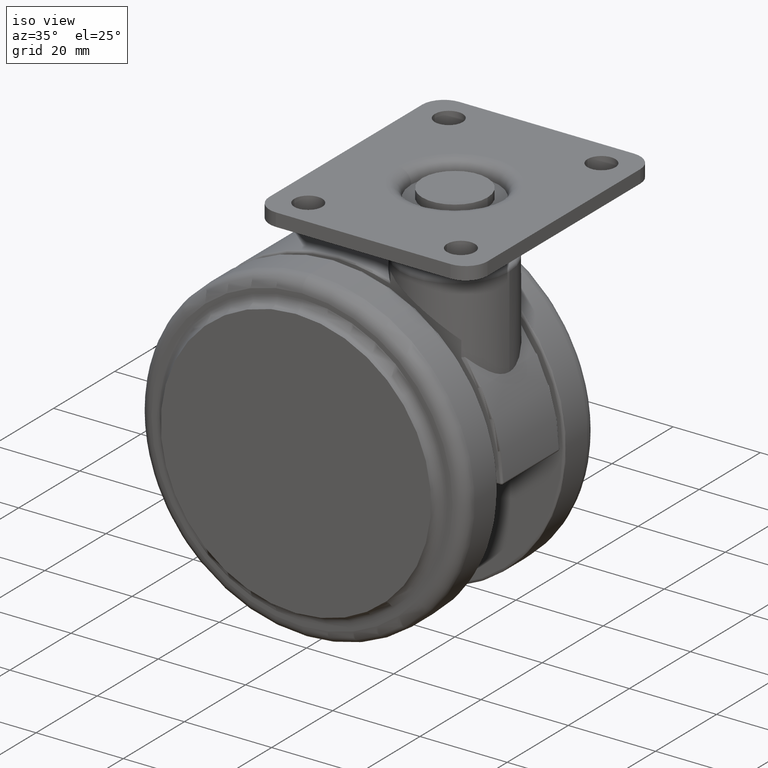
[diagram: clean part render]
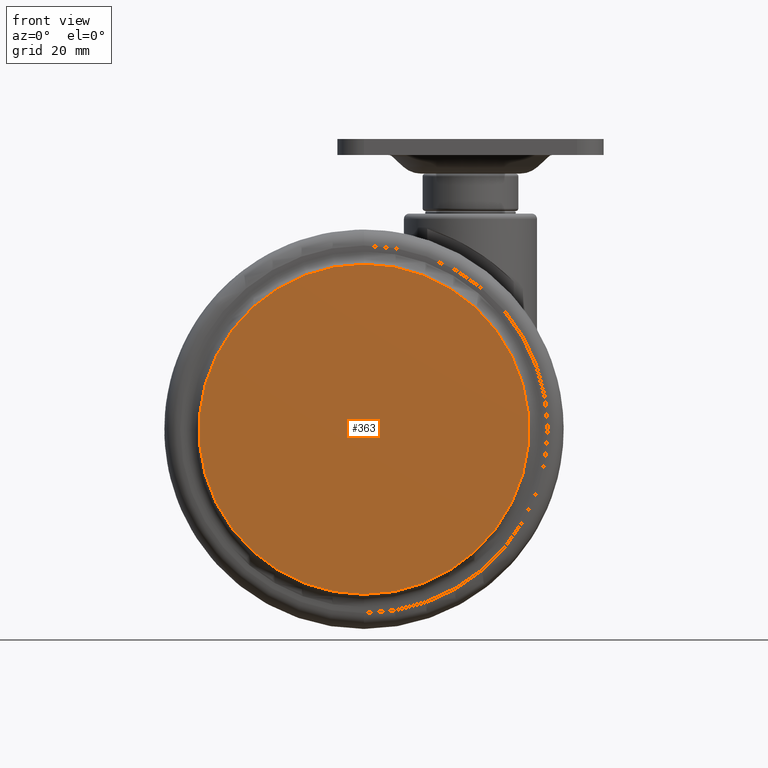
[diagram: tour spotlight — one face highlighted and labeled with its STEP entity id]
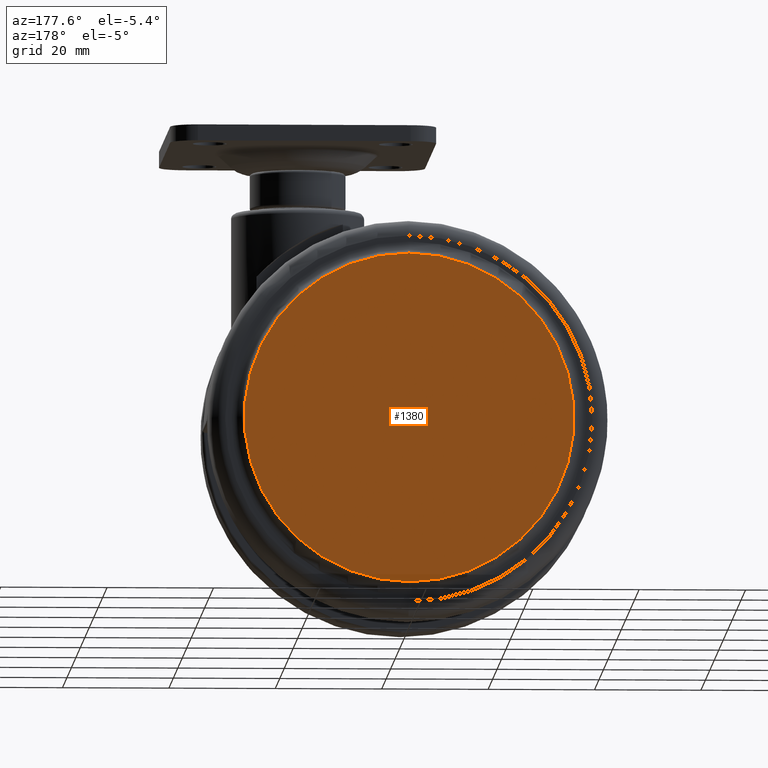
[diagram: tour spotlight — one face highlighted and labeled with its STEP entity id]
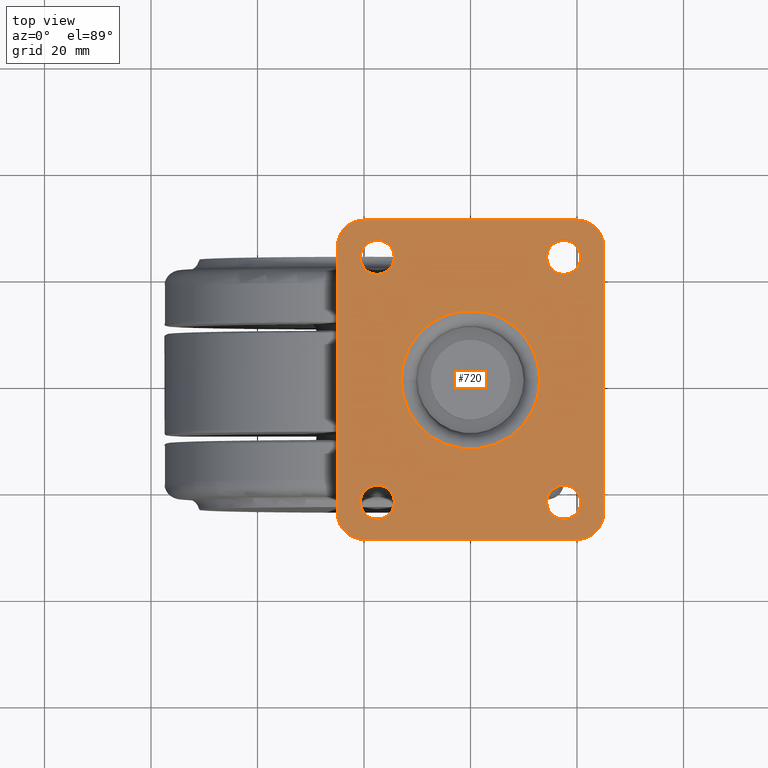
[diagram: tour spotlight — one face highlighted and labeled with its STEP entity id]
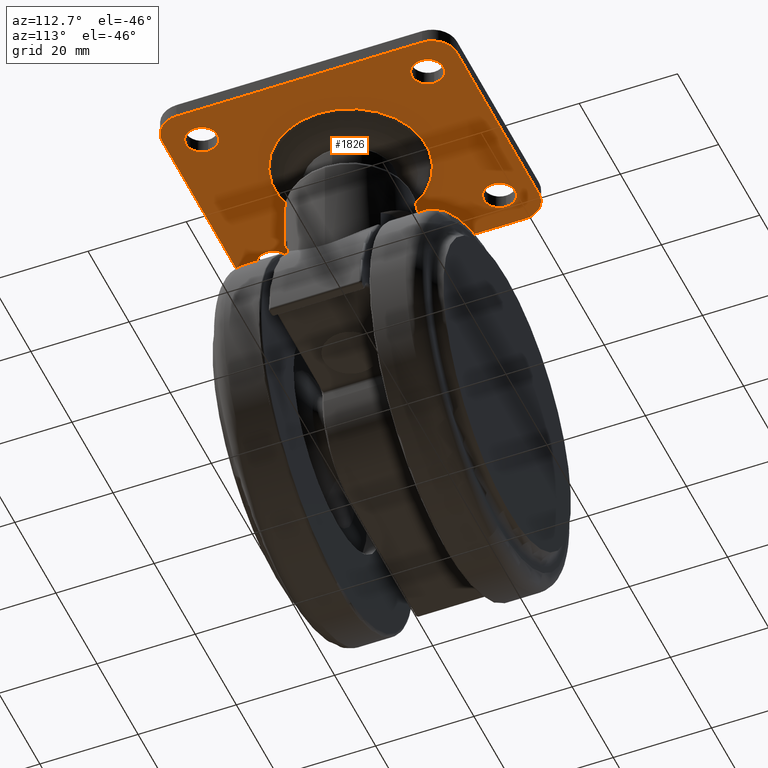
[diagram: tour spotlight — one face highlighted and labeled with its STEP entity id]
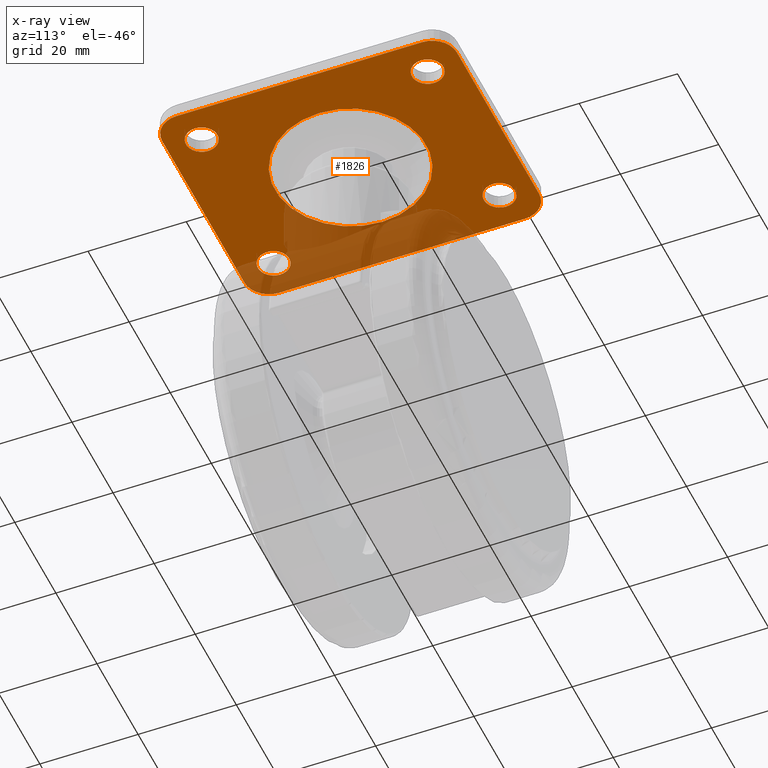
[diagram: x-ray of the same camera — body ghosted, this tour face saturated]
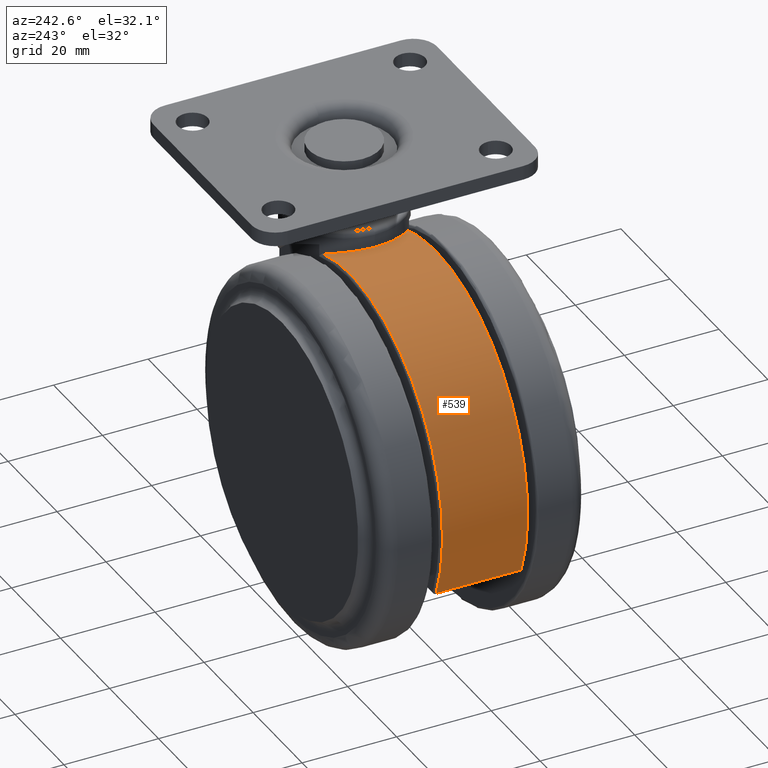
[diagram: tour spotlight — one face highlighted and labeled with its STEP entity id]
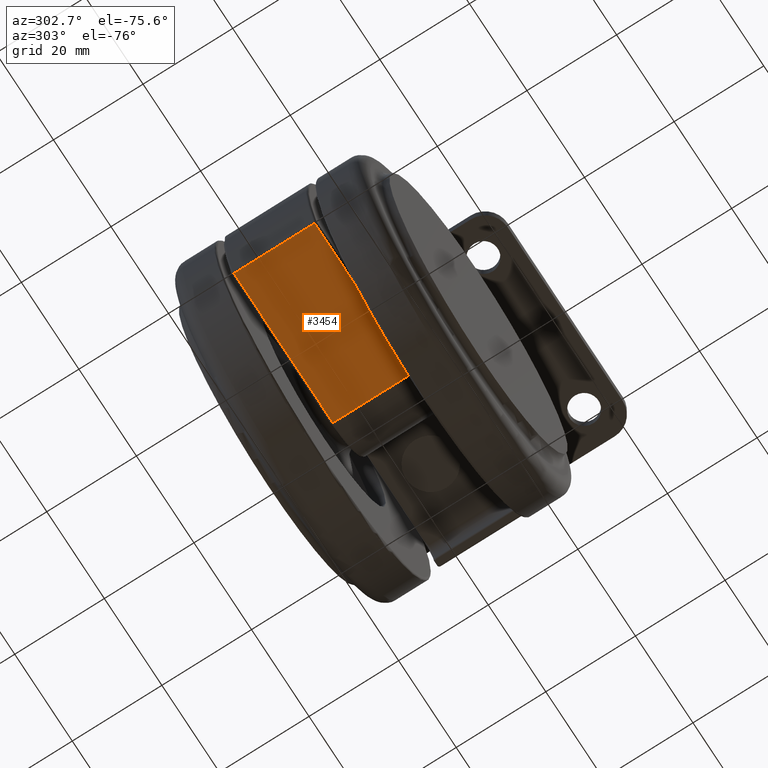
[diagram: tour spotlight — one face highlighted and labeled with its STEP entity id]
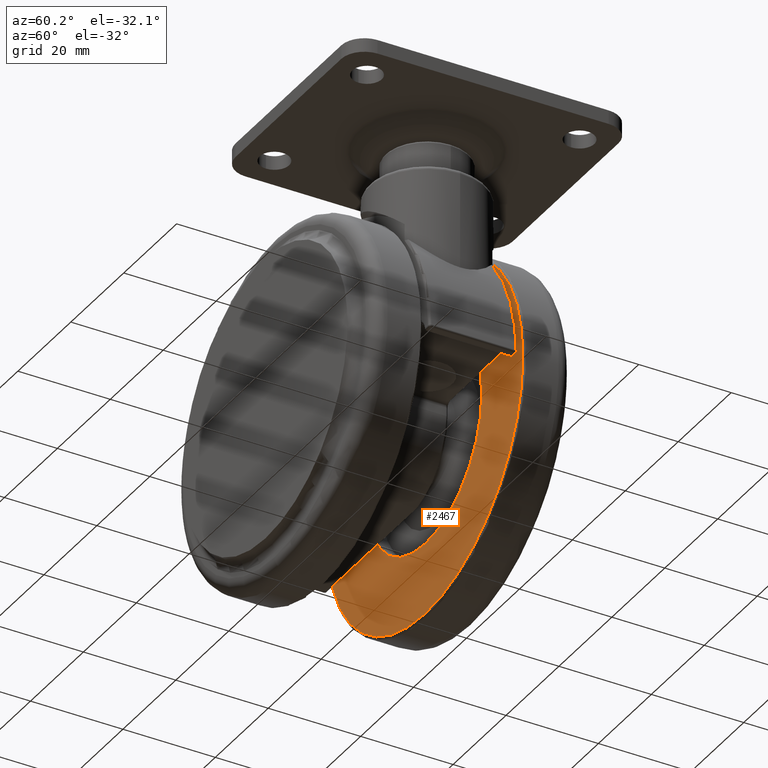
[diagram: tour spotlight — one face highlighted and labeled with its STEP entity id]
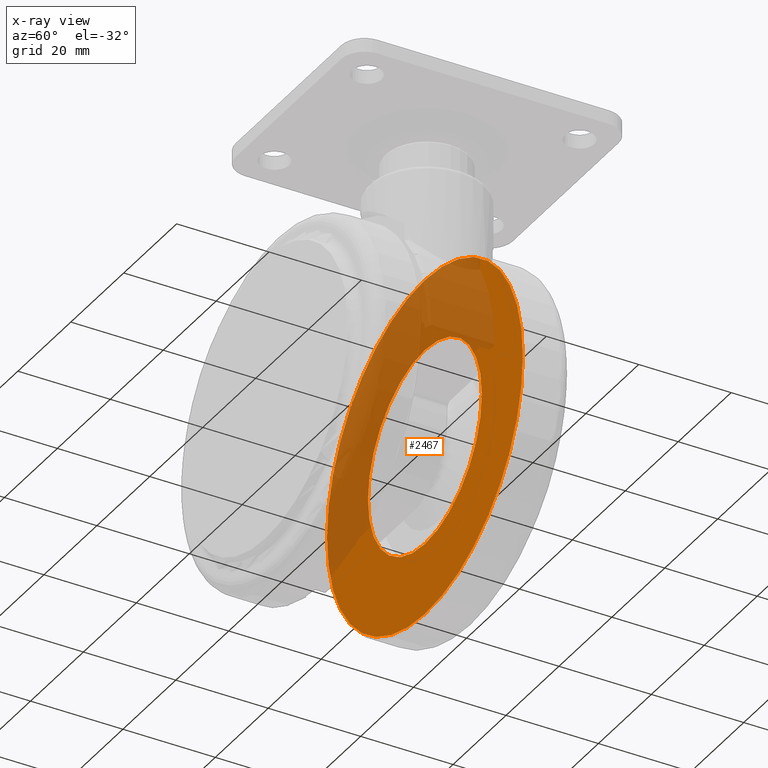
[diagram: x-ray of the same camera — body ghosted, this tour face saturated]
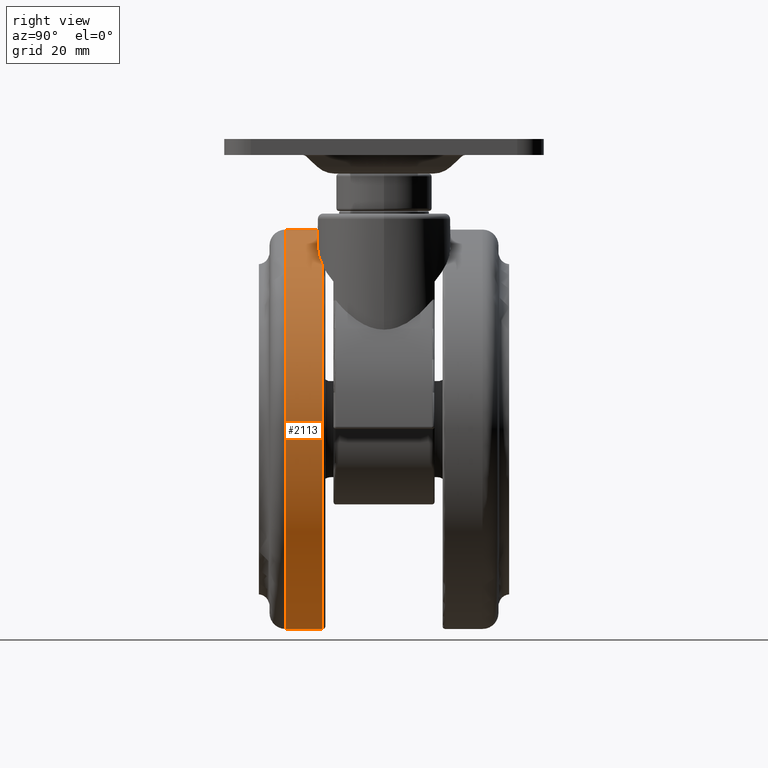
[diagram: tour spotlight — one face highlighted and labeled with its STEP entity id]
A machine part: a face-by-face anatomy tour. The part has 141 B-rep faces; the first image is the clean iso view, then the 8 largest visible faces are spotlighted one at a time (largest first), each with its STEP entity span.

Face 1 — front view, entity #363. In plain terms, the highlighted planar face has unit normal (0, -1, 0).
Definition (entity closure, byte-faithful):
#88 = CARTESIAN_POINT ( 'NONE',  ( -20.00000000000000000, -23.50000000000000000, -40.50000000000000000 ) ) ;
#171 = CARTESIAN_POINT ( 'NONE',  ( -19.99999999999999600, -23.50000000000000000, -9.500000000000001800 ) ) ;
#197 = CARTESIAN_POINT ( 'NONE',  ( -20.00000000000000000, -23.50000000000000000, -71.50000000000001400 ) ) ;
#208 = DIRECTION ( 'NONE',  ( 0.0000000000000000000, -1.000000000000000000, 0.0000000000000000000 ) ) ;
#272 = EDGE_CURVE ( 'NONE', #996, #1348, #3242, .T. ) ;
#363 = ADVANCED_FACE ( 'NONE', ( #3367 ), #892, .T. ) ;
#568 = AXIS2_PLACEMENT_3D ( 'NONE', #88, #3115, #2430 ) ;
#892 = PLANE ( 'NONE',  #568 ) ;
#996 = VERTEX_POINT ( 'NONE', #197 ) ;
#1191 = DIRECTION ( 'NONE',  ( 0.0000000000000000000, 0.0000000000000000000, -1.000000000000000000 ) ) ;
#1234 = DIRECTION ( 'NONE',  ( 0.0000000000000000000, -1.000000000000000000, 0.0000000000000000000 ) ) ;
#1348 = VERTEX_POINT ( 'NONE', #171 ) ;
#1641 = AXIS2_PLACEMENT_3D ( 'NONE', #2215, #208, #2550 ) ;
#1682 = ORIENTED_EDGE ( 'NONE', *, *, #272, .T. ) ;
#1986 = AXIS2_PLACEMENT_3D ( 'NONE', #2491, #1234, #1191 ) ;
#2215 = CARTESIAN_POINT ( 'NONE',  ( -20.00000000000000000, -23.50000000000000000, -40.50000000000000000 ) ) ;
#2430 = DIRECTION ( 'NONE',  ( 0.0000000000000000000, 0.0000000000000000000, -1.000000000000000000 ) ) ;
#2491 = CARTESIAN_POINT ( 'NONE',  ( -20.00000000000000000, -23.50000000000000000, -40.50000000000000000 ) ) ;
#2550 = DIRECTION ( 'NONE',  ( 0.0000000000000000000, 0.0000000000000000000, -1.000000000000000000 ) ) ;
#2683 = ORIENTED_EDGE ( 'NONE', *, *, #3586, .T. ) ;
#3115 = DIRECTION ( 'NONE',  ( 0.0000000000000000000, -1.000000000000000000, 0.0000000000000000000 ) ) ;
#3134 = CIRCLE ( 'NONE', #1641, 31.00000000000000700 ) ;
#3218 = EDGE_LOOP ( 'NONE', ( #1682, #2683 ) ) ;
#3242 = CIRCLE ( 'NONE', #1986, 31.00000000000000700 ) ;
#3367 = FACE_OUTER_BOUND ( 'NONE', #3218, .T. ) ;
#3586 = EDGE_CURVE ( 'NONE', #1348, #996, #3134, .T. ) ;

Face 2 — auxiliary view, entity #1380. In plain terms, the highlighted planar face has unit normal (0, 1, 0).
Definition (entity closure, byte-faithful):
#135 = CARTESIAN_POINT ( 'NONE',  ( -20.00000000000000000, 23.50000000000000000, -71.50000000000001400 ) ) ;
#203 = DIRECTION ( 'NONE',  ( 1.582413479254075000E-015, 1.000000000000000000, 0.0000000000000000000 ) ) ;
#215 = DIRECTION ( 'NONE',  ( 0.0000000000000000000, 0.0000000000000000000, -1.000000000000000000 ) ) ;
#317 = AXIS2_PLACEMENT_3D ( 'NONE', #3868, #203, #2542 ) ;
#357 = EDGE_CURVE ( 'NONE', #3972, #3685, #4258, .T. ) ;
#554 = DIRECTION ( 'NONE',  ( -1.582413479254075000E-015, -1.000000000000000000, 0.0000000000000000000 ) ) ;
#597 = EDGE_CURVE ( 'NONE', #3685, #3972, #1821, .T. ) ;
#1034 = ORIENTED_EDGE ( 'NONE', *, *, #357, .F. ) ;
#1380 = ADVANCED_FACE ( 'NONE', ( #3278 ), #2194, .T. ) ;
#1570 = CARTESIAN_POINT ( 'NONE',  ( -20.00000000000000400, 23.50000000000000000, -9.500000000000001800 ) ) ;
#1821 = CIRCLE ( 'NONE', #3575, 31.00000000000000700 ) ;
#1874 = DIRECTION ( 'NONE',  ( -1.582413479254075000E-015, -1.000000000000000000, 0.0000000000000000000 ) ) ;
#2194 = PLANE ( 'NONE',  #317 ) ;
#2542 = DIRECTION ( 'NONE',  ( 0.0000000000000000000, 0.0000000000000000000, -1.000000000000000000 ) ) ;
#2906 = CARTESIAN_POINT ( 'NONE',  ( -20.00000000000000000, 23.50000000000000000, -40.50000000000000000 ) ) ;
#3171 = ORIENTED_EDGE ( 'NONE', *, *, #597, .F. ) ;
#3278 = FACE_OUTER_BOUND ( 'NONE', #3816, .T. ) ;
#3575 = AXIS2_PLACEMENT_3D ( 'NONE', #3870, #1874, #4200 ) ;
#3685 = VERTEX_POINT ( 'NONE', #1570 ) ;
#3816 = EDGE_LOOP ( 'NONE', ( #1034, #3171 ) ) ;
#3868 = CARTESIAN_POINT ( 'NONE',  ( -20.00000000000000000, 23.50000000000000000, -40.50000000000000000 ) ) ;
#3870 = CARTESIAN_POINT ( 'NONE',  ( -20.00000000000000000, 23.50000000000000000, -40.50000000000000000 ) ) ;
#3972 = VERTEX_POINT ( 'NONE', #135 ) ;
#3989 = AXIS2_PLACEMENT_3D ( 'NONE', #2906, #554, #215 ) ;
#4200 = DIRECTION ( 'NONE',  ( 0.0000000000000000000, 0.0000000000000000000, -1.000000000000000000 ) ) ;
#4258 = CIRCLE ( 'NONE', #3989, 31.00000000000000700 ) ;

Face 3 — top view, entity #720. In plain terms, the highlighted planar face has unit normal (0, 0, -1).
Definition (entity closure, byte-faithful):
#63 = CIRCLE ( 'NONE', #2967, 3.199999999999999700 ) ;
#113 = EDGE_CURVE ( 'NONE', #545, #587, #63, .T. ) ;
#183 = DIRECTION ( 'NONE',  ( 1.000000000000000000, -0.0000000000000000000, -0.0000000000000000000 ) ) ;
#185 = CARTESIAN_POINT ( 'NONE',  ( 17.50000000000000000, 23.00000000000000000, 14.00000000000000000 ) ) ;
#196 = DIRECTION ( 'NONE',  ( -1.000000000000000000, 0.0000000000000000000, 0.0000000000000000000 ) ) ;
#239 = VERTEX_POINT ( 'NONE', #1824 ) ;
#264 = EDGE_CURVE ( 'NONE', #3308, #2214, #1440, .T. ) ;
#265 = DIRECTION ( 'NONE',  ( -1.000000000000000000, 0.0000000000000000000, 0.0000000000000000000 ) ) ;
#316 = ORIENTED_EDGE ( 'NONE', *, *, #3505, .T. ) ;
#323 = AXIS2_PLACEMENT_3D ( 'NONE', #185, #2527, #525 ) ;
#346 = ORIENTED_EDGE ( 'NONE', *, *, #1285, .T. ) ;
#415 = EDGE_CURVE ( 'NONE', #1582, #1309, #4156, .T. ) ;
#428 = CARTESIAN_POINT ( 'NONE',  ( 25.00000000000000000, 25.00000000000000000, 14.00000000000000000 ) ) ;
#433 = CARTESIAN_POINT ( 'NONE',  ( -19.99999999999849700, -30.00000000000000000, 14.00000000000000000 ) ) ;
#441 = FACE_OUTER_BOUND ( 'NONE', #3900, .T. ) ;
#517 = FACE_BOUND ( 'NONE', #1017, .T. ) ;
#525 = DIRECTION ( 'NONE',  ( -1.000000000000000000, 0.0000000000000000000, 0.0000000000000000000 ) ) ;
#536 = CARTESIAN_POINT ( 'NONE',  ( -17.50000000000000000, -23.00000000000000000, 14.00000000000000000 ) ) ;
#540 = ORIENTED_EDGE ( 'NONE', *, *, #2174, .F. ) ;
#545 = VERTEX_POINT ( 'NONE', #2970 ) ;
#567 = AXIS2_PLACEMENT_3D ( 'NONE', #3982, #1994, #4310 ) ;
#570 = AXIS2_PLACEMENT_3D ( 'NONE', #3254, #1248, #3588 ) ;
#587 = VERTEX_POINT ( 'NONE', #2296 ) ;
#606 = CARTESIAN_POINT ( 'NONE',  ( -17.50000000000000000, -23.00000000000000000, 14.00000000000000000 ) ) ;
#657 = EDGE_CURVE ( 'NONE', #2667, #1715, #827, .T. ) ;
#708 = CARTESIAN_POINT ( 'NONE',  ( 17.50000000000000000, -23.00000000000000000, 14.00000000000000000 ) ) ;
#720 = ADVANCED_FACE ( 'NONE', ( #2065, #517, #2965, #2234, #1332, #441 ), #4173, .F. ) ;
#734 = EDGE_CURVE ( 'NONE', #1309, #1582, #1243, .T. ) ;
#763 = LINE ( 'NONE', #1833, #4221 ) ;
#774 = AXIS2_PLACEMENT_3D ( 'NONE', #606, #3608, #265 ) ;
#783 = DIRECTION ( 'NONE',  ( -0.0000000000000000000, -0.0000000000000000000, 1.000000000000000000 ) ) ;
#814 = ORIENTED_EDGE ( 'NONE', *, *, #959, .T. ) ;
#827 = CIRCLE ( 'NONE', #570, 5.000000000000000900 ) ;
#849 = ORIENTED_EDGE ( 'NONE', *, *, #657, .T. ) ;
#858 = DIRECTION ( 'NONE',  ( 0.0000000000000000000, 0.0000000000000000000, -1.000000000000000000 ) ) ;
#868 = DIRECTION ( 'NONE',  ( -1.000000000000000000, 0.0000000000000000000, 0.0000000000000000000 ) ) ;
#885 = CIRCLE ( 'NONE', #1580, 5.000000000000000900 ) ;
#906 = DIRECTION ( 'NONE',  ( -0.0000000000000000000, -0.0000000000000000000, 1.000000000000000000 ) ) ;
#959 = EDGE_CURVE ( 'NONE', #1671, #1396, #1289, .T. ) ;
#1017 = EDGE_LOOP ( 'NONE', ( #2148, #2677 ) ) ;
#1051 = DIRECTION ( 'NONE',  ( -1.000000000000000000, 0.0000000000000000000, 0.0000000000000000000 ) ) ;
#1059 = VECTOR ( 'NONE', #3128, 1000.000000000000000 ) ;
#1131 = CARTESIAN_POINT ( 'NONE',  ( 25.00000000000000000, -25.00000000000000000, 14.00000000000000000 ) ) ;
#1158 = DIRECTION ( 'NONE',  ( -1.000000000000000000, -0.0000000000000000000, -0.0000000000000000000 ) ) ;
#1161 = ORIENTED_EDGE ( 'NONE', *, *, #1375, .T. ) ;
#1243 = CIRCLE ( 'NONE', #4133, 3.200000000000001500 ) ;
#1248 = DIRECTION ( 'NONE',  ( -0.0000000000000000000, -0.0000000000000000000, 1.000000000000000000 ) ) ;
#1263 = EDGE_LOOP ( 'NONE', ( #3152, #2777 ) ) ;
#1285 = EDGE_CURVE ( 'NONE', #1715, #239, #1685, .T. ) ;
#1289 = LINE ( 'NONE', #2188, #3841 ) ;
#1292 = VERTEX_POINT ( 'NONE', #2169 ) ;
#1309 = VERTEX_POINT ( 'NONE', #2492 ) ;
#1310 = VERTEX_POINT ( 'NONE', #2850 ) ;
#1332 = FACE_BOUND ( 'NONE', #4278, .T. ) ;
#1333 = AXIS2_PLACEMENT_3D ( 'NONE', #1739, #4066, #2078 ) ;
#1345 = CIRCLE ( 'NONE', #2087, 3.200000000000001500 ) ;
#1375 = EDGE_CURVE ( 'NONE', #1396, #3620, #4026, .T. ) ;
#1396 = VERTEX_POINT ( 'NONE', #2398 ) ;
#1440 = CIRCLE ( 'NONE', #1548, 13.00000000000000000 ) ;
#1467 = DIRECTION ( 'NONE',  ( -1.000000000000000000, 0.0000000000000000000, 0.0000000000000000000 ) ) ;
#1472 = EDGE_CURVE ( 'NONE', #3620, #2667, #1958, .T. ) ;
#1509 = CIRCLE ( 'NONE', #2641, 3.199999999999999700 ) ;
#1548 = AXIS2_PLACEMENT_3D ( 'NONE', #3819, #4132, #1467 ) ;
#1580 = AXIS2_PLACEMENT_3D ( 'NONE', #1669, #4108, #2122 ) ;
#1582 = VERTEX_POINT ( 'NONE', #2048 ) ;
#1595 = ORIENTED_EDGE ( 'NONE', *, *, #3425, .T. ) ;
#1615 = CARTESIAN_POINT ( 'NONE',  ( -13.00000000000000000, -2.842170943040399500E-014, 13.99999999999999800 ) ) ;
#1669 = CARTESIAN_POINT ( 'NONE',  ( -20.00000000000000000, -25.00000000000000000, 14.00000000000000000 ) ) ;
#1671 = VERTEX_POINT ( 'NONE', #433 ) ;
#1685 = LINE ( 'NONE', #3162, #4249 ) ;
#1703 = CARTESIAN_POINT ( 'NONE',  ( 17.50000000000000000, -23.00000000000000000, 14.00000000000000000 ) ) ;
#1715 = VERTEX_POINT ( 'NONE', #4126 ) ;
#1736 = CARTESIAN_POINT ( 'NONE',  ( 13.00000000000000000, -2.682966859151243800E-014, 13.99999999999999800 ) ) ;
#1739 = CARTESIAN_POINT ( 'NONE',  ( 17.50000000000000000, 23.00000000000000000, 14.00000000000000000 ) ) ;
#1824 = CARTESIAN_POINT ( 'NONE',  ( -20.00000000000454700, 30.00000000000000000, 14.00000000000000000 ) ) ;
#1833 = CARTESIAN_POINT ( 'NONE',  ( -25.00000000000000000, 25.00000000000000000, 14.00000000000000000 ) ) ;
#1840 = VERTEX_POINT ( 'NONE', #3370 ) ;
#1871 = CARTESIAN_POINT ( 'NONE',  ( 20.00000000000000000, -25.00000000000000000, 14.00000000000000000 ) ) ;
#1958 = LINE ( 'NONE', #1131, #1059 ) ;
#1965 = ORIENTED_EDGE ( 'NONE', *, *, #3612, .F. ) ;
#1990 = EDGE_LOOP ( 'NONE', ( #2846, #3784 ) ) ;
#1994 = DIRECTION ( 'NONE',  ( -0.0000000000000000000, -0.0000000000000000000, 1.000000000000000000 ) ) ;
#2041 = DIRECTION ( 'NONE',  ( -1.000000000000000000, 0.0000000000000000000, 0.0000000000000000000 ) ) ;
#2048 = CARTESIAN_POINT ( 'NONE',  ( -14.30000000000000100, -23.00000000000000000, 14.00000000000000000 ) ) ;
#2065 = FACE_BOUND ( 'NONE', #1990, .T. ) ;
#2076 = EDGE_CURVE ( 'NONE', #1840, #2385, #2827, .T. ) ;
#2078 = DIRECTION ( 'NONE',  ( -1.000000000000000000, 0.0000000000000000000, 0.0000000000000000000 ) ) ;
#2085 = EDGE_CURVE ( 'NONE', #1292, #1310, #2707, .T. ) ;
#2087 = AXIS2_PLACEMENT_3D ( 'NONE', #2913, #906, #3245 ) ;
#2122 = DIRECTION ( 'NONE',  ( -1.000000000000000000, 0.0000000000000000000, 0.0000000000000000000 ) ) ;
#2148 = ORIENTED_EDGE ( 'NONE', *, *, #3820, .F. ) ;
#2169 = CARTESIAN_POINT ( 'NONE',  ( -20.70000000000000300, 23.00000000000000000, 14.00000000000000000 ) ) ;
#2174 = EDGE_CURVE ( 'NONE', #587, #545, #1509, .T. ) ;
#2184 = AXIS2_PLACEMENT_3D ( 'NONE', #2799, #783, #3127 ) ;
#2188 = CARTESIAN_POINT ( 'NONE',  ( -20.00000000000000000, -30.00000000000000000, 14.00000000000000000 ) ) ;
#2207 = DIRECTION ( 'NONE',  ( 0.0000000000000000000, 0.0000000000000000000, -1.000000000000000000 ) ) ;
#2210 = DIRECTION ( 'NONE',  ( -1.000000000000000000, 0.0000000000000000000, 0.0000000000000000000 ) ) ;
#2214 = VERTEX_POINT ( 'NONE', #1736 ) ;
#2234 = FACE_BOUND ( 'NONE', #1263, .T. ) ;
#2296 = CARTESIAN_POINT ( 'NONE',  ( 20.70000000000000300, -23.00000000000000000, 14.00000000000000000 ) ) ;
#2385 = VERTEX_POINT ( 'NONE', #2985 ) ;
#2398 = CARTESIAN_POINT ( 'NONE',  ( 20.00000000000000000, -30.00000000000000000, 14.00000000000000000 ) ) ;
#2492 = CARTESIAN_POINT ( 'NONE',  ( -20.70000000000000300, -23.00000000000000000, 14.00000000000000000 ) ) ;
#2527 = DIRECTION ( 'NONE',  ( -0.0000000000000000000, -0.0000000000000000000, 1.000000000000000000 ) ) ;
#2568 = CARTESIAN_POINT ( 'NONE',  ( 25.00000000000000000, -25.00000000000000000, 14.00000000000000000 ) ) ;
#2641 = AXIS2_PLACEMENT_3D ( 'NONE', #1703, #4029, #2041 ) ;
#2664 = CIRCLE ( 'NONE', #2184, 5.000000000000000900 ) ;
#2667 = VERTEX_POINT ( 'NONE', #428 ) ;
#2677 = ORIENTED_EDGE ( 'NONE', *, *, #2076, .F. ) ;
#2679 = CARTESIAN_POINT ( 'NONE',  ( -25.00000000000000000, -25.00000000000000000, 14.00000000000000000 ) ) ;
#2707 = CIRCLE ( 'NONE', #567, 3.200000000000001500 ) ;
#2722 = ORIENTED_EDGE ( 'NONE', *, *, #2996, .T. ) ;
#2777 = ORIENTED_EDGE ( 'NONE', *, *, #415, .F. ) ;
#2799 = CARTESIAN_POINT ( 'NONE',  ( -20.00000000000000000, 25.00000000000000000, 14.00000000000000000 ) ) ;
#2827 = CIRCLE ( 'NONE', #323, 3.199999999999999700 ) ;
#2846 = ORIENTED_EDGE ( 'NONE', *, *, #264, .T. ) ;
#2850 = CARTESIAN_POINT ( 'NONE',  ( -14.30000000000000100, 23.00000000000000000, 14.00000000000000000 ) ) ;
#2863 = CARTESIAN_POINT ( 'NONE',  ( 0.0000000000000000000, 0.0000000000000000000, 14.00000000000000000 ) ) ;
#2879 = DIRECTION ( 'NONE',  ( -0.0000000000000000000, -0.0000000000000000000, 1.000000000000000000 ) ) ;
#2913 = CARTESIAN_POINT ( 'NONE',  ( -17.50000000000000000, 23.00000000000000000, 14.00000000000000000 ) ) ;
#2965 = FACE_BOUND ( 'NONE', #3967, .T. ) ;
#2967 = AXIS2_PLACEMENT_3D ( 'NONE', #708, #3052, #1051 ) ;
#2970 = CARTESIAN_POINT ( 'NONE',  ( 14.30000000000000200, -23.00000000000000000, 14.00000000000000000 ) ) ;
#2985 = CARTESIAN_POINT ( 'NONE',  ( 14.30000000000000200, 23.00000000000000000, 14.00000000000000000 ) ) ;
#2996 = EDGE_CURVE ( 'NONE', #3020, #1671, #885, .T. ) ;
#3020 = VERTEX_POINT ( 'NONE', #2679 ) ;
#3052 = DIRECTION ( 'NONE',  ( -0.0000000000000000000, -0.0000000000000000000, 1.000000000000000000 ) ) ;
#3127 = DIRECTION ( 'NONE',  ( -1.000000000000000000, 0.0000000000000000000, 0.0000000000000000000 ) ) ;
#3128 = DIRECTION ( 'NONE',  ( -0.0000000000000000000, 1.000000000000000000, -0.0000000000000000000 ) ) ;
#3132 = EDGE_CURVE ( 'NONE', #2214, #3308, #3792, .T. ) ;
#3152 = ORIENTED_EDGE ( 'NONE', *, *, #734, .F. ) ;
#3162 = CARTESIAN_POINT ( 'NONE',  ( 20.00000000000000000, 30.00000000000000000, 14.00000000000000000 ) ) ;
#3200 = DIRECTION ( 'NONE',  ( 1.000000000000000000, 0.0000000000000000000, 0.0000000000000000000 ) ) ;
#3245 = DIRECTION ( 'NONE',  ( -1.000000000000000000, 0.0000000000000000000, 0.0000000000000000000 ) ) ;
#3254 = CARTESIAN_POINT ( 'NONE',  ( 20.00000000000000000, 25.00000000000000000, 14.00000000000000000 ) ) ;
#3308 = VERTEX_POINT ( 'NONE', #1615 ) ;
#3316 = ORIENTED_EDGE ( 'NONE', *, *, #113, .F. ) ;
#3370 = CARTESIAN_POINT ( 'NONE',  ( 20.70000000000000300, 23.00000000000000000, 14.00000000000000000 ) ) ;
#3425 = EDGE_CURVE ( 'NONE', #239, #3556, #2664, .T. ) ;
#3505 = EDGE_CURVE ( 'NONE', #3556, #3020, #763, .T. ) ;
#3537 = CARTESIAN_POINT ( 'NONE',  ( -25.00000000000000000, 24.99999999999689800, 14.00000000000000000 ) ) ;
#3556 = VERTEX_POINT ( 'NONE', #3537 ) ;
#3588 = DIRECTION ( 'NONE',  ( -1.000000000000000000, 6.938893903907227400E-016, 0.0000000000000000000 ) ) ;
#3608 = DIRECTION ( 'NONE',  ( -0.0000000000000000000, -0.0000000000000000000, 1.000000000000000000 ) ) ;
#3612 = EDGE_CURVE ( 'NONE', #1310, #1292, #1345, .T. ) ;
#3620 = VERTEX_POINT ( 'NONE', #2568 ) ;
#3670 = ORIENTED_EDGE ( 'NONE', *, *, #1472, .T. ) ;
#3749 = ORIENTED_EDGE ( 'NONE', *, *, #2085, .F. ) ;
#3784 = ORIENTED_EDGE ( 'NONE', *, *, #3132, .T. ) ;
#3792 = CIRCLE ( 'NONE', #4017, 13.00000000000000000 ) ;
#3819 = CARTESIAN_POINT ( 'NONE',  ( 0.0000000000000000000, -2.842170943040399500E-014, 14.00000000000000000 ) ) ;
#3820 = EDGE_CURVE ( 'NONE', #2385, #1840, #4168, .T. ) ;
#3841 = VECTOR ( 'NONE', #183, 1000.000000000000000 ) ;
#3900 = EDGE_LOOP ( 'NONE', ( #346, #1595, #316, #2722, #814, #1161, #3670, #849 ) ) ;
#3926 = AXIS2_PLACEMENT_3D ( 'NONE', #2863, #858, #3200 ) ;
#3967 = EDGE_LOOP ( 'NONE', ( #3749, #1965 ) ) ;
#3982 = CARTESIAN_POINT ( 'NONE',  ( -17.50000000000000000, 23.00000000000000000, 14.00000000000000000 ) ) ;
#3983 = AXIS2_PLACEMENT_3D ( 'NONE', #1871, #4196, #2210 ) ;
#4017 = AXIS2_PLACEMENT_3D ( 'NONE', #4194, #2207, #196 ) ;
#4026 = CIRCLE ( 'NONE', #3983, 5.000000000000000900 ) ;
#4029 = DIRECTION ( 'NONE',  ( -0.0000000000000000000, -0.0000000000000000000, 1.000000000000000000 ) ) ;
#4066 = DIRECTION ( 'NONE',  ( -0.0000000000000000000, -0.0000000000000000000, 1.000000000000000000 ) ) ;
#4108 = DIRECTION ( 'NONE',  ( -0.0000000000000000000, -0.0000000000000000000, 1.000000000000000000 ) ) ;
#4126 = CARTESIAN_POINT ( 'NONE',  ( 19.99999999999560200, 30.00000000000000000, 14.00000000000000000 ) ) ;
#4132 = DIRECTION ( 'NONE',  ( 0.0000000000000000000, 0.0000000000000000000, -1.000000000000000000 ) ) ;
#4133 = AXIS2_PLACEMENT_3D ( 'NONE', #536, #2879, #868 ) ;
#4151 = DIRECTION ( 'NONE',  ( -0.0000000000000000000, -1.000000000000000000, -0.0000000000000000000 ) ) ;
#4156 = CIRCLE ( 'NONE', #774, 3.200000000000001500 ) ;
#4168 = CIRCLE ( 'NONE', #1333, 3.199999999999999700 ) ;
#4173 = PLANE ( 'NONE',  #3926 ) ;
#4194 = CARTESIAN_POINT ( 'NONE',  ( 0.0000000000000000000, -2.842170943040399500E-014, 14.00000000000000000 ) ) ;
#4196 = DIRECTION ( 'NONE',  ( -0.0000000000000000000, -0.0000000000000000000, 1.000000000000000000 ) ) ;
#4221 = VECTOR ( 'NONE', #4151, 1000.000000000000000 ) ;
#4249 = VECTOR ( 'NONE', #1158, 1000.000000000000000 ) ;
#4278 = EDGE_LOOP ( 'NONE', ( #3316, #540 ) ) ;
#4310 = DIRECTION ( 'NONE',  ( -1.000000000000000000, 0.0000000000000000000, 0.0000000000000000000 ) ) ;

Face 4 — auxiliary view, entity #1826. An x-ray twin of the same camera follows (body ghosted, this face saturated) — the face is partly hidden behind the body. In plain terms, the highlighted planar face has unit normal (0, 0, -1).
Definition (entity closure, byte-faithful):
#7 = VERTEX_POINT ( 'NONE', #989 ) ;
#28 = ORIENTED_EDGE ( 'NONE', *, *, #695, .T. ) ;
#47 = CARTESIAN_POINT ( 'NONE',  ( -17.50000000000000000, -23.00000000000000000, 11.00000000000011900 ) ) ;
#55 = CARTESIAN_POINT ( 'NONE',  ( -17.50000000000000000, -23.00000000000000000, 11.00000000000011900 ) ) ;
#90 = CARTESIAN_POINT ( 'NONE',  ( -20.00000000000000000, 25.00000000000000000, 11.00000000000011900 ) ) ;
#146 = EDGE_CURVE ( 'NONE', #4275, #2784, #752, .T. ) ;
#206 = FACE_BOUND ( 'NONE', #1311, .T. ) ;
#302 = VERTEX_POINT ( 'NONE', #2558 ) ;
#304 = AXIS2_PLACEMENT_3D ( 'NONE', #3827, #1832, #4150 ) ;
#342 = VERTEX_POINT ( 'NONE', #1869 ) ;
#350 = VERTEX_POINT ( 'NONE', #1803 ) ;
#386 = CIRCLE ( 'NONE', #2591, 3.199999999999999700 ) ;
#395 = DIRECTION ( 'NONE',  ( -1.000000000000000000, 0.0000000000000000000, 0.0000000000000000000 ) ) ;
#398 = DIRECTION ( 'NONE',  ( -0.0000000000000000000, -0.0000000000000000000, 1.000000000000000000 ) ) ;
#405 = DIRECTION ( 'NONE',  ( -1.000000000000000000, 0.0000000000000000000, 0.0000000000000000000 ) ) ;
#422 = DIRECTION ( 'NONE',  ( -0.0000000000000000000, -1.000000000000000000, -0.0000000000000000000 ) ) ;
#434 = DIRECTION ( 'NONE',  ( -1.000000000000000000, 0.0000000000000000000, 0.0000000000000000000 ) ) ;
#461 = EDGE_LOOP ( 'NONE', ( #1554, #3622 ) ) ;
#494 = CARTESIAN_POINT ( 'NONE',  ( 20.00000000000000000, -30.00000000000000000, 11.00000000000011900 ) ) ;
#530 = EDGE_LOOP ( 'NONE', ( #1661, #2226 ) ) ;
#588 = VERTEX_POINT ( 'NONE', #1637 ) ;
#611 = DIRECTION ( 'NONE',  ( -0.0000000000000000000, -0.0000000000000000000, 1.000000000000000000 ) ) ;
#669 = DIRECTION ( 'NONE',  ( -0.0000000000000000000, -0.0000000000000000000, 1.000000000000000000 ) ) ;
#684 = CARTESIAN_POINT ( 'NONE',  ( 20.00000000000000000, -25.00000000000000000, 11.00000000000011900 ) ) ;
#685 = DIRECTION ( 'NONE',  ( 0.0000000000000000000, 0.0000000000000000000, -1.000000000000000000 ) ) ;
#695 = EDGE_CURVE ( 'NONE', #3007, #3356, #386, .T. ) ;
#700 = CIRCLE ( 'NONE', #1527, 5.000000000000000900 ) ;
#701 = EDGE_CURVE ( 'NONE', #350, #342, #1299, .T. ) ;
#747 = CARTESIAN_POINT ( 'NONE',  ( -15.39225022157200100, 0.0000000000000000000, 11.00000000000000000 ) ) ;
#752 = CIRCLE ( 'NONE', #4292, 3.200000000000001500 ) ;
#767 = ORIENTED_EDGE ( 'NONE', *, *, #1998, .F. ) ;
#826 = CIRCLE ( 'NONE', #957, 5.000000000000000900 ) ;
#847 = CARTESIAN_POINT ( 'NONE',  ( 25.00000000000000000, -25.00000000000000000, 11.00000000000011900 ) ) ;
#851 = EDGE_LOOP ( 'NONE', ( #1745, #2033 ) ) ;
#867 = CARTESIAN_POINT ( 'NONE',  ( -20.70000000000000300, -23.00000000000000000, 11.00000000000011900 ) ) ;
#897 = ORIENTED_EDGE ( 'NONE', *, *, #1327, .T. ) ;
#914 = ORIENTED_EDGE ( 'NONE', *, *, #4239, .F. ) ;
#939 = CIRCLE ( 'NONE', #304, 5.000000000000000900 ) ;
#945 = VECTOR ( 'NONE', #1718, 1000.000000000000000 ) ;
#957 = AXIS2_PLACEMENT_3D ( 'NONE', #2401, #398, #2751 ) ;
#989 = CARTESIAN_POINT ( 'NONE',  ( -25.00000000000000000, 24.99999999999689800, 11.00000000000011900 ) ) ;
#1010 = CARTESIAN_POINT ( 'NONE',  ( 0.0000000000000000000, 0.0000000000000000000, 11.00000000000000000 ) ) ;
#1021 = DIRECTION ( 'NONE',  ( -1.000000000000000000, 0.0000000000000000000, 0.0000000000000000000 ) ) ;
#1022 = DIRECTION ( 'NONE',  ( 1.000000000000000000, -0.0000000000000000000, -0.0000000000000000000 ) ) ;
#1084 = FACE_BOUND ( 'NONE', #3209, .T. ) ;
#1102 = CARTESIAN_POINT ( 'NONE',  ( -14.30000000000000100, -23.00000000000000000, 11.00000000000011900 ) ) ;
#1143 = LINE ( 'NONE', #4205, #3689 ) ;
#1210 = FACE_BOUND ( 'NONE', #461, .T. ) ;
#1250 = CARTESIAN_POINT ( 'NONE',  ( -17.50000000000000000, 23.00000000000000000, 11.00000000000011900 ) ) ;
#1299 = CIRCLE ( 'NONE', #3019, 3.200000000000001500 ) ;
#1311 = EDGE_LOOP ( 'NONE', ( #2905, #28 ) ) ;
#1315 = VERTEX_POINT ( 'NONE', #494 ) ;
#1327 = EDGE_CURVE ( 'NONE', #2546, #302, #3361, .T. ) ;
#1347 = DIRECTION ( 'NONE',  ( -1.000000000000000000, 0.0000000000000000000, 0.0000000000000000000 ) ) ;
#1363 = CARTESIAN_POINT ( 'NONE',  ( 25.00000000000000000, 25.00000000000000000, 11.00000000000011900 ) ) ;
#1466 = DIRECTION ( 'NONE',  ( -0.0000000000000000000, -0.0000000000000000000, 1.000000000000000000 ) ) ;
#1488 = CARTESIAN_POINT ( 'NONE',  ( -19.99999999999849700, -30.00000000000000000, 11.00000000000011900 ) ) ;
#1506 = CARTESIAN_POINT ( 'NONE',  ( -17.50000000000000000, 23.00000000000000000, 11.00000000000011900 ) ) ;
#1527 = AXIS2_PLACEMENT_3D ( 'NONE', #684, #3023, #1021 ) ;
#1554 = ORIENTED_EDGE ( 'NONE', *, *, #1779, .T. ) ;
#1584 = DIRECTION ( 'NONE',  ( -1.000000000000000000, 0.0000000000000000000, 0.0000000000000000000 ) ) ;
#1589 = EDGE_CURVE ( 'NONE', #3089, #1838, #2712, .T. ) ;
#1623 = AXIS2_PLACEMENT_3D ( 'NONE', #90, #2433, #434 ) ;
#1637 = CARTESIAN_POINT ( 'NONE',  ( -20.00000000000454700, 30.00000000000000000, 11.00000000000011900 ) ) ;
#1639 = CARTESIAN_POINT ( 'NONE',  ( 14.30000000000000200, -23.00000000000000000, 11.00000000000011900 ) ) ;
#1645 = ORIENTED_EDGE ( 'NONE', *, *, #4302, .F. ) ;
#1659 = VERTEX_POINT ( 'NONE', #747 ) ;
#1661 = ORIENTED_EDGE ( 'NONE', *, *, #3353, .T. ) ;
#1690 = DIRECTION ( 'NONE',  ( -0.0000000000000000000, -0.0000000000000000000, 1.000000000000000000 ) ) ;
#1718 = DIRECTION ( 'NONE',  ( -0.0000000000000000000, 1.000000000000000000, -0.0000000000000000000 ) ) ;
#1745 = ORIENTED_EDGE ( 'NONE', *, *, #701, .T. ) ;
#1779 = EDGE_CURVE ( 'NONE', #1659, #2983, #3070, .T. ) ;
#1791 = EDGE_CURVE ( 'NONE', #4005, #1315, #2975, .T. ) ;
#1803 = CARTESIAN_POINT ( 'NONE',  ( -20.70000000000000300, 23.00000000000000000, 11.00000000000011900 ) ) ;
#1826 = ADVANCED_FACE ( 'NONE', ( #1210, #1084, #1973, #2883, #206, #3653 ), #2359, .T. ) ;
#1832 = DIRECTION ( 'NONE',  ( -0.0000000000000000000, -0.0000000000000000000, 1.000000000000000000 ) ) ;
#1838 = VERTEX_POINT ( 'NONE', #1363 ) ;
#1845 = CARTESIAN_POINT ( 'NONE',  ( 17.50000000000000000, 23.00000000000000000, 11.00000000000011900 ) ) ;
#1849 = DIRECTION ( 'NONE',  ( -1.000000000000000000, 0.0000000000000000000, 0.0000000000000000000 ) ) ;
#1869 = CARTESIAN_POINT ( 'NONE',  ( -14.30000000000000100, 23.00000000000000000, 11.00000000000011900 ) ) ;
#1895 = AXIS2_PLACEMENT_3D ( 'NONE', #3474, #1466, #3797 ) ;
#1973 = FACE_BOUND ( 'NONE', #851, .T. ) ;
#1998 = EDGE_CURVE ( 'NONE', #7, #2414, #4104, .T. ) ;
#2026 = CARTESIAN_POINT ( 'NONE',  ( 0.0000000000000000000, 0.0000000000000000000, 11.00000000000000000 ) ) ;
#2033 = ORIENTED_EDGE ( 'NONE', *, *, #2859, .T. ) ;
#2073 = VECTOR ( 'NONE', #1022, 1000.000000000000000 ) ;
#2147 = EDGE_CURVE ( 'NONE', #1315, #3089, #700, .T. ) ;
#2156 = EDGE_CURVE ( 'NONE', #2983, #1659, #2502, .T. ) ;
#2179 = DIRECTION ( 'NONE',  ( -1.000000000000000000, 0.0000000000000000000, 0.0000000000000000000 ) ) ;
#2219 = DIRECTION ( 'NONE',  ( -1.000000000000000000, -0.0000000000000000000, -0.0000000000000000000 ) ) ;
#2226 = ORIENTED_EDGE ( 'NONE', *, *, #146, .T. ) ;
#2261 = ORIENTED_EDGE ( 'NONE', *, *, #2735, .F. ) ;
#2312 = EDGE_CURVE ( 'NONE', #302, #2546, #2882, .T. ) ;
#2337 = VECTOR ( 'NONE', #422, 1000.000000000000000 ) ;
#2359 = PLANE ( 'NONE',  #3644 ) ;
#2397 = DIRECTION ( 'NONE',  ( -0.0000000000000000000, -0.0000000000000000000, 1.000000000000000000 ) ) ;
#2399 = AXIS2_PLACEMENT_3D ( 'NONE', #3695, #1690, #4018 ) ;
#2400 = CARTESIAN_POINT ( 'NONE',  ( 25.00000000000000000, -25.00000000000000000, 11.00000000000011900 ) ) ;
#2401 = CARTESIAN_POINT ( 'NONE',  ( 20.00000000000000000, 25.00000000000000000, 11.00000000000011900 ) ) ;
#2404 = DIRECTION ( 'NONE',  ( -0.0000000000000000000, -0.0000000000000000000, 1.000000000000000000 ) ) ;
#2414 = VERTEX_POINT ( 'NONE', #2998 ) ;
#2433 = DIRECTION ( 'NONE',  ( -0.0000000000000000000, -0.0000000000000000000, 1.000000000000000000 ) ) ;
#2461 = CARTESIAN_POINT ( 'NONE',  ( -25.00000000000000000, 25.00000000000000000, 11.00000000000011900 ) ) ;
#2502 = CIRCLE ( 'NONE', #2399, 15.39225022157200100 ) ;
#2546 = VERTEX_POINT ( 'NONE', #3378 ) ;
#2558 = CARTESIAN_POINT ( 'NONE',  ( 14.30000000000000200, 23.00000000000000000, 11.00000000000011900 ) ) ;
#2591 = AXIS2_PLACEMENT_3D ( 'NONE', #2620, #611, #2949 ) ;
#2620 = CARTESIAN_POINT ( 'NONE',  ( 17.50000000000000000, -23.00000000000000000, 11.00000000000011900 ) ) ;
#2623 = ORIENTED_EDGE ( 'NONE', *, *, #1791, .F. ) ;
#2645 = CARTESIAN_POINT ( 'NONE',  ( 20.70000000000000300, -23.00000000000000000, 11.00000000000011900 ) ) ;
#2682 = CARTESIAN_POINT ( 'NONE',  ( 17.50000000000000000, -23.00000000000000000, 11.00000000000011900 ) ) ;
#2709 = DIRECTION ( 'NONE',  ( 1.000000000000000000, 0.0000000000000000000, 0.0000000000000000000 ) ) ;
#2712 = LINE ( 'NONE', #2400, #945 ) ;
#2735 = EDGE_CURVE ( 'NONE', #2414, #4005, #939, .T. ) ;
#2751 = DIRECTION ( 'NONE',  ( -1.000000000000000000, 6.938893903907227400E-016, 0.0000000000000000000 ) ) ;
#2784 = VERTEX_POINT ( 'NONE', #867 ) ;
#2859 = EDGE_CURVE ( 'NONE', #342, #350, #2969, .T. ) ;
#2882 = CIRCLE ( 'NONE', #1895, 3.199999999999999700 ) ;
#2883 = FACE_BOUND ( 'NONE', #530, .T. ) ;
#2905 = ORIENTED_EDGE ( 'NONE', *, *, #3700, .T. ) ;
#2949 = DIRECTION ( 'NONE',  ( -1.000000000000000000, 0.0000000000000000000, 0.0000000000000000000 ) ) ;
#2969 = CIRCLE ( 'NONE', #3671, 3.200000000000001500 ) ;
#2975 = LINE ( 'NONE', #3024, #2073 ) ;
#2983 = VERTEX_POINT ( 'NONE', #2994 ) ;
#2994 = CARTESIAN_POINT ( 'NONE',  ( 15.39225022157200100, 1.885006996552328800E-015, 11.00000000000000000 ) ) ;
#2998 = CARTESIAN_POINT ( 'NONE',  ( -25.00000000000000000, -25.00000000000000000, 11.00000000000011900 ) ) ;
#3007 = VERTEX_POINT ( 'NONE', #2645 ) ;
#3009 = DIRECTION ( 'NONE',  ( -1.000000000000000000, 0.0000000000000000000, 0.0000000000000000000 ) ) ;
#3019 = AXIS2_PLACEMENT_3D ( 'NONE', #1506, #3839, #1849 ) ;
#3023 = DIRECTION ( 'NONE',  ( -0.0000000000000000000, -0.0000000000000000000, 1.000000000000000000 ) ) ;
#3024 = CARTESIAN_POINT ( 'NONE',  ( -20.00000000000000000, -30.00000000000000000, 11.00000000000011900 ) ) ;
#3070 = CIRCLE ( 'NONE', #3235, 15.39225022157200100 ) ;
#3079 = CARTESIAN_POINT ( 'NONE',  ( 19.99999999999560200, 30.00000000000000000, 11.00000000000011900 ) ) ;
#3089 = VERTEX_POINT ( 'NONE', #847 ) ;
#3157 = EDGE_CURVE ( 'NONE', #3382, #588, #1143, .T. ) ;
#3209 = EDGE_LOOP ( 'NONE', ( #3261, #897 ) ) ;
#3220 = ORIENTED_EDGE ( 'NONE', *, *, #3157, .F. ) ;
#3228 = AXIS2_PLACEMENT_3D ( 'NONE', #2682, #669, #3009 ) ;
#3235 = AXIS2_PLACEMENT_3D ( 'NONE', #1010, #3351, #1347 ) ;
#3261 = ORIENTED_EDGE ( 'NONE', *, *, #2312, .T. ) ;
#3290 = CIRCLE ( 'NONE', #1623, 5.000000000000000900 ) ;
#3321 = AXIS2_PLACEMENT_3D ( 'NONE', #1845, #4167, #2179 ) ;
#3351 = DIRECTION ( 'NONE',  ( -0.0000000000000000000, -0.0000000000000000000, 1.000000000000000000 ) ) ;
#3353 = EDGE_CURVE ( 'NONE', #2784, #4275, #4034, .T. ) ;
#3356 = VERTEX_POINT ( 'NONE', #1639 ) ;
#3361 = CIRCLE ( 'NONE', #3321, 3.199999999999999700 ) ;
#3378 = CARTESIAN_POINT ( 'NONE',  ( 20.70000000000000300, 23.00000000000000000, 11.00000000000011900 ) ) ;
#3382 = VERTEX_POINT ( 'NONE', #3079 ) ;
#3456 = ORIENTED_EDGE ( 'NONE', *, *, #2147, .F. ) ;
#3474 = CARTESIAN_POINT ( 'NONE',  ( 17.50000000000000000, 23.00000000000000000, 11.00000000000011900 ) ) ;
#3591 = DIRECTION ( 'NONE',  ( -0.0000000000000000000, -0.0000000000000000000, 1.000000000000000000 ) ) ;
#3622 = ORIENTED_EDGE ( 'NONE', *, *, #2156, .T. ) ;
#3644 = AXIS2_PLACEMENT_3D ( 'NONE', #2026, #685, #2709 ) ;
#3653 = FACE_OUTER_BOUND ( 'NONE', #3811, .T. ) ;
#3671 = AXIS2_PLACEMENT_3D ( 'NONE', #1250, #3591, #1584 ) ;
#3689 = VECTOR ( 'NONE', #2219, 1000.000000000000000 ) ;
#3694 = CIRCLE ( 'NONE', #3228, 3.199999999999999700 ) ;
#3695 = CARTESIAN_POINT ( 'NONE',  ( 0.0000000000000000000, 0.0000000000000000000, 11.00000000000000000 ) ) ;
#3700 = EDGE_CURVE ( 'NONE', #3356, #3007, #3694, .T. ) ;
#3797 = DIRECTION ( 'NONE',  ( -1.000000000000000000, 0.0000000000000000000, 0.0000000000000000000 ) ) ;
#3811 = EDGE_LOOP ( 'NONE', ( #3220, #914, #4181, #3456, #2623, #2261, #767, #1645 ) ) ;
#3827 = CARTESIAN_POINT ( 'NONE',  ( -20.00000000000000000, -25.00000000000000000, 11.00000000000011900 ) ) ;
#3839 = DIRECTION ( 'NONE',  ( -0.0000000000000000000, -0.0000000000000000000, 1.000000000000000000 ) ) ;
#4005 = VERTEX_POINT ( 'NONE', #1488 ) ;
#4018 = DIRECTION ( 'NONE',  ( -1.000000000000000000, 0.0000000000000000000, 0.0000000000000000000 ) ) ;
#4034 = CIRCLE ( 'NONE', #4261, 3.200000000000001500 ) ;
#4104 = LINE ( 'NONE', #2461, #2337 ) ;
#4150 = DIRECTION ( 'NONE',  ( -1.000000000000000000, 0.0000000000000000000, 0.0000000000000000000 ) ) ;
#4167 = DIRECTION ( 'NONE',  ( -0.0000000000000000000, -0.0000000000000000000, 1.000000000000000000 ) ) ;
#4181 = ORIENTED_EDGE ( 'NONE', *, *, #1589, .F. ) ;
#4205 = CARTESIAN_POINT ( 'NONE',  ( 20.00000000000000000, 30.00000000000000000, 11.00000000000011900 ) ) ;
#4239 = EDGE_CURVE ( 'NONE', #1838, #3382, #826, .T. ) ;
#4261 = AXIS2_PLACEMENT_3D ( 'NONE', #47, #2397, #395 ) ;
#4275 = VERTEX_POINT ( 'NONE', #1102 ) ;
#4292 = AXIS2_PLACEMENT_3D ( 'NONE', #55, #2404, #405 ) ;
#4302 = EDGE_CURVE ( 'NONE', #588, #7, #3290, .T. ) ;

Face 5 — auxiliary view, entity #539. In plain terms, the highlighted cylindrical surface (partial cylindrical patch) has radius 37.5 mm, axis along (0, -1, 0).
Definition (entity closure, byte-faithful):
#57 = CYLINDRICAL_SURFACE ( 'NONE', #2911, 37.50000000000000000 ) ;
#70 = DIRECTION ( 'NONE',  ( 0.0000000000000000000, 0.0000000000000000000, -1.000000000000000000 ) ) ;
#125 = B_SPLINE_CURVE_WITH_KNOTS ( 'NONE', 3,
 ( #3621, #1290, #3950, #1955, #4279, #2292, #281, #2634, #629, #2962, #963, #3307, #1302, #3641 ),
 .UNSPECIFIED., .F., .F.,
 ( 4, 2, 2, 2, 2, 2, 4 ),
 ( 0.0007578292614578130900, 0.003276614447077814200, 0.004536007039887815200, 0.005795399632697815700, 0.007054792225507816200, 0.008314184818317818500, 0.01083297000393782300 ),
 .UNSPECIFIED. ) ;
#149 = CARTESIAN_POINT ( 'NONE',  ( -20.00000000000045100, -8.999999999999799300, -40.50000000000000000 ) ) ;
#174 = CARTESIAN_POINT ( 'NONE',  ( -12.07499608784259600, 3.339284003571599600, -3.846566198035183500 ) ) ;
#194 = FACE_OUTER_BOUND ( 'NONE', #3299, .T. ) ;
#281 = CARTESIAN_POINT ( 'NONE',  ( -11.32877515779916800, -5.299412595533453000, -4.015916222165394300 ) ) ;
#489 = DIRECTION ( 'NONE',  ( 0.0000000000000000000, 0.0000000000000000000, 1.000000000000000000 ) ) ;
#512 = CARTESIAN_POINT ( 'NONE',  ( -11.32890675711923300, 5.299343921343998800, -4.015880330838450100 ) ) ;
#539 = ADVANCED_FACE ( 'NONE', ( #194 ), #57, .T. ) ;
#628 = ORIENTED_EDGE ( 'NONE', *, *, #1182, .T. ) ;
#629 = CARTESIAN_POINT ( 'NONE',  ( -11.80282795274265500, -4.137603731906472700, -3.906654837730500200 ) ) ;
#787 = ORIENTED_EDGE ( 'NONE', *, *, #2917, .T. ) ;
#841 = VERTEX_POINT ( 'NONE', #3592 ) ;
#856 = CARTESIAN_POINT ( 'NONE',  ( -10.73730232612175200, 6.413705260039230400, -4.161370447469451500 ) ) ;
#898 = EDGE_CURVE ( 'NONE', #1312, #1681, #4028, .T. ) ;
#963 = CARTESIAN_POINT ( 'NONE',  ( -12.16031509086136700, -2.925245578562813500, -3.828527006093505500 ) ) ;
#986 = CIRCLE ( 'NONE', #1085, 37.50000000000000000 ) ;
#1085 = AXIS2_PLACEMENT_3D ( 'NONE', #4077, #2095, #70 ) ;
#1182 = EDGE_CURVE ( 'NONE', #2232, #1312, #3778, .T. ) ;
#1194 = CARTESIAN_POINT ( 'NONE',  ( -10.04652675849994200, 7.449099134835352100, -4.344254723362667800 ) ) ;
#1290 = CARTESIAN_POINT ( 'NONE',  ( -9.267378490791253800, -8.428721800230761100, -4.563286331331251100 ) ) ;
#1302 = CARTESIAN_POINT ( 'NONE',  ( -12.49999999999999800, -0.8407722689415021400, -3.757653858252426800 ) ) ;
#1312 = VERTEX_POINT ( 'NONE', #1792 ) ;
#1360 = B_SPLINE_CURVE_WITH_KNOTS ( 'NONE', 3,
 ( #2853, #3838, #1847, #4170, #2182, #174, #2517, #512, #2861, #856, #3198, #1194, #3534, #1528, #3851, #1861 ),
 .UNSPECIFIED., .F., .F.,
 ( 4, 2, 2, 2, 2, 2, 2, 4 ),
 ( 0.01083297000393782300, 0.01209086360940814100, 0.01334875721487845800, 0.01586454442581909300, 0.01712243803128940900, 0.01838033163675972500, 0.01963822524223004400, 0.02089611884770036000 ),
 .UNSPECIFIED. ) ;
#1528 = CARTESIAN_POINT ( 'NONE',  ( -9.258363189833458400, 8.408577873207479000, -4.570274193610124800 ) ) ;
#1579 = VERTEX_POINT ( 'NONE', #1731 ) ;
#1629 = CARTESIAN_POINT ( 'NONE',  ( -20.00000000000045100, 0.0000000000000000000, -40.50000000000000000 ) ) ;
#1646 = AXIS2_PLACEMENT_3D ( 'NONE', #3809, #1814, #4139 ) ;
#1681 = VERTEX_POINT ( 'NONE', #1746 ) ;
#1723 = EDGE_CURVE ( 'NONE', #1681, #1579, #3381, .T. ) ;
#1731 = CARTESIAN_POINT ( 'NONE',  ( -8.674675786448901200, -8.999999999999809900, -4.751055519666890000 ) ) ;
#1746 = CARTESIAN_POINT ( 'NONE',  ( -20.00000000000045100, -8.999999999999799300, -3.000000000000002700 ) ) ;
#1792 = CARTESIAN_POINT ( 'NONE',  ( -54.86951361419750100, -8.999999999999799300, -54.29735555493609700 ) ) ;
#1814 = DIRECTION ( 'NONE',  ( 0.0000000000000000000, 1.000000000000000000, 0.0000000000000000000 ) ) ;
#1847 = CARTESIAN_POINT ( 'NONE',  ( -12.47890053855938700, 0.8408547169093227900, -3.761941011588097300 ) ) ;
#1861 = CARTESIAN_POINT ( 'NONE',  ( -8.674675786448538900, 9.000000000000230900, -4.751055519667010800 ) ) ;
#1928 = EDGE_CURVE ( 'NONE', #841, #2232, #986, .T. ) ;
#1955 = CARTESIAN_POINT ( 'NONE',  ( -10.51517581383509300, -6.771638203603449900, -4.218482085273332200 ) ) ;
#2095 = DIRECTION ( 'NONE',  ( 0.0000000000000000000, -1.000000000000000000, 0.0000000000000000000 ) ) ;
#2172 = DIRECTION ( 'NONE',  ( 0.0000000000000000000, -1.000000000000000000, 0.0000000000000000000 ) ) ;
#2182 = CARTESIAN_POINT ( 'NONE',  ( -12.32874735431087700, 2.104418142397915100, -3.792924973968794700 ) ) ;
#2232 = VERTEX_POINT ( 'NONE', #2754 ) ;
#2292 = CARTESIAN_POINT ( 'NONE',  ( -11.14504601772913600, -5.675801001144079400, -4.059861759056297500 ) ) ;
#2300 = ORIENTED_EDGE ( 'NONE', *, *, #898, .T. ) ;
#2488 = DIRECTION ( 'NONE',  ( 0.0000000000000000000, 1.000000000000000000, 0.0000000000000000000 ) ) ;
#2517 = CARTESIAN_POINT ( 'NONE',  ( -11.82515094896099400, 4.138176200578661800, -3.900311104676254200 ) ) ;
#2634 = CARTESIAN_POINT ( 'NONE',  ( -11.65766593866017000, -4.530314039475490200, -3.939311114517211700 ) ) ;
#2754 = CARTESIAN_POINT ( 'NONE',  ( -54.86951361419750100, 9.000000000000199000, -54.29735555493609700 ) ) ;
#2796 = ORIENTED_EDGE ( 'NONE', *, *, #4006, .T. ) ;
#2853 = CARTESIAN_POINT ( 'NONE',  ( -12.50000000000000000, 2.995251654553703900E-014, -3.757653858252425000 ) ) ;
#2861 = CARTESIAN_POINT ( 'NONE',  ( -11.14238452377035500, 5.680892846167517400, -4.060512983454700000 ) ) ;
#2911 = AXIS2_PLACEMENT_3D ( 'NONE', #1629, #3298, #3955 ) ;
#2916 = VECTOR ( 'NONE', #2172, 1000.000000000000000 ) ;
#2917 = EDGE_CURVE ( 'NONE', #1579, #3457, #125, .T. ) ;
#2962 = CARTESIAN_POINT ( 'NONE',  ( -12.05401286481520300, -3.335758711177920300, -3.851291589132261400 ) ) ;
#3177 = AXIS2_PLACEMENT_3D ( 'NONE', #149, #2488, #489 ) ;
#3198 = CARTESIAN_POINT ( 'NONE',  ( -10.51789632378315200, 6.767247206361606300, -4.217783199591902000 ) ) ;
#3298 = DIRECTION ( 'NONE',  ( 0.0000000000000000000, -1.000000000000000000, 0.0000000000000000000 ) ) ;
#3299 = EDGE_LOOP ( 'NONE', ( #787, #2796, #3458, #628, #2300, #4125 ) ) ;
#3307 = CARTESIAN_POINT ( 'NONE',  ( -12.41604507323763200, -1.677237000265646300, -3.774477651932344200 ) ) ;
#3381 = CIRCLE ( 'NONE', #1646, 37.50000000000000000 ) ;
#3457 = VERTEX_POINT ( 'NONE', #3482 ) ;
#3458 = ORIENTED_EDGE ( 'NONE', *, *, #1928, .T. ) ;
#3482 = CARTESIAN_POINT ( 'NONE',  ( -12.50000000000000000, 2.995251654553703900E-014, -3.757653858252425000 ) ) ;
#3534 = CARTESIAN_POINT ( 'NONE',  ( -9.794559992498440300, 7.777407367369056200, -4.414310978766519800 ) ) ;
#3592 = CARTESIAN_POINT ( 'NONE',  ( -8.674675786448538900, 9.000000000000230900, -4.751055519667010800 ) ) ;
#3621 = CARTESIAN_POINT ( 'NONE',  ( -8.674675786448901200, -8.999999999999809900, -4.751055519666890000 ) ) ;
#3641 = CARTESIAN_POINT ( 'NONE',  ( -12.50000000000000000, 2.995251654553703900E-014, -3.757653858252425000 ) ) ;
#3778 = LINE ( 'NONE', #4153, #2916 ) ;
#3809 = CARTESIAN_POINT ( 'NONE',  ( -20.00000000000045100, -8.999999999999799300, -40.50000000000000000 ) ) ;
#3838 = CARTESIAN_POINT ( 'NONE',  ( -12.50000000000000000, 0.4198857714410683100, -3.757653858252427700 ) ) ;
#3851 = CARTESIAN_POINT ( 'NONE',  ( -8.972938191872776400, 8.712518925962278600, -4.656565500695855100 ) ) ;
#3950 = CARTESIAN_POINT ( 'NONE',  ( -9.802904443546696100, -7.800582663888066600, -4.409683149507409400 ) ) ;
#3955 = DIRECTION ( 'NONE',  ( 0.0000000000000000000, 0.0000000000000000000, -1.000000000000000000 ) ) ;
#4006 = EDGE_CURVE ( 'NONE', #3457, #841, #1360, .T. ) ;
#4028 = CIRCLE ( 'NONE', #3177, 37.50000000000000000 ) ;
#4077 = CARTESIAN_POINT ( 'NONE',  ( -20.00000000000045100, 9.000000000000199000, -40.50000000000000000 ) ) ;
#4125 = ORIENTED_EDGE ( 'NONE', *, *, #1723, .T. ) ;
#4139 = DIRECTION ( 'NONE',  ( 0.0000000000000000000, 0.0000000000000000000, 1.000000000000000000 ) ) ;
#4153 = CARTESIAN_POINT ( 'NONE',  ( -54.86951361419750100, 0.0000000000000000000, -54.29735555493609700 ) ) ;
#4170 = CARTESIAN_POINT ( 'NONE',  ( -12.39317029340259800, 1.685029787549746400, -3.779596173792669300 ) ) ;
#4279 = CARTESIAN_POINT ( 'NONE',  ( -10.73847770299704000, -6.411853426593876500, -4.161066474243648700 ) ) ;

Face 6 — auxiliary view, entity #3454. In plain terms, the highlighted planar face has unit normal (0, 0, -1).
Definition (entity closure, byte-faithful):
#27 = EDGE_CURVE ( 'NONE', #4204, #4051, #3852, .T. ) ;
#54 = EDGE_CURVE ( 'NONE', #2343, #2790, #3648, .T. ) ;
#377 = CARTESIAN_POINT ( 'NONE',  ( -20.00000000000045100, 9.000000000000230900, -54.61339081420359800 ) ) ;
#401 = ORIENTED_EDGE ( 'NONE', *, *, #27, .T. ) ;
#574 = CARTESIAN_POINT ( 'NONE',  ( -54.74280068914399800, -8.999999999999799300, -54.61339081420359800 ) ) ;
#706 = ORIENTED_EDGE ( 'NONE', *, *, #844, .T. ) ;
#798 = DIRECTION ( 'NONE',  ( -1.000000000000000000, 0.0000000000000000000, 0.0000000000000000000 ) ) ;
#844 = EDGE_CURVE ( 'NONE', #4051, #2343, #4253, .T. ) ;
#1113 = CARTESIAN_POINT ( 'NONE',  ( -54.74280068914399800, 990.5000000000000000, -54.61339081420359800 ) ) ;
#1130 = PLANE ( 'NONE',  #3535 ) ;
#1278 = ORIENTED_EDGE ( 'NONE', *, *, #54, .T. ) ;
#1364 = CARTESIAN_POINT ( 'NONE',  ( -54.40458676600820100, 9.500000000000170500, -54.61339081420359800 ) ) ;
#1602 = VECTOR ( 'NONE', #3271, 1000.000000000000000 ) ;
#1763 = VECTOR ( 'NONE', #4116, 1000.000000000000000 ) ;
#1770 = FACE_OUTER_BOUND ( 'NONE', #3528, .T. ) ;
#1983 = ORIENTED_EDGE ( 'NONE', *, *, #3892, .T. ) ;
#2343 = VERTEX_POINT ( 'NONE', #2489 ) ;
#2489 = CARTESIAN_POINT ( 'NONE',  ( -54.40458676600820100, -8.999999999999799300, -54.61339081420359800 ) ) ;
#2658 = LINE ( 'NONE', #3785, #1763 ) ;
#2756 = VECTOR ( 'NONE', #3698, 1000.000000000000000 ) ;
#2790 = VERTEX_POINT ( 'NONE', #3215 ) ;
#2815 = DIRECTION ( 'NONE',  ( 0.0000000000000000000, 0.0000000000000000000, -1.000000000000000000 ) ) ;
#2963 = VECTOR ( 'NONE', #3996, 1000.000000000000000 ) ;
#3004 = CARTESIAN_POINT ( 'NONE',  ( -20.00000000000045100, 990.5000000000000000, -54.61339081420359800 ) ) ;
#3215 = CARTESIAN_POINT ( 'NONE',  ( -54.40458676600820100, 9.000000000000230900, -54.61339081420359800 ) ) ;
#3271 = DIRECTION ( 'NONE',  ( -1.000000000000000000, -0.0000000000000000000, -0.0000000000000000000 ) ) ;
#3454 = ADVANCED_FACE ( 'NONE', ( #1770 ), #1130, .T. ) ;
#3528 = EDGE_LOOP ( 'NONE', ( #401, #706, #1278, #1983 ) ) ;
#3535 = AXIS2_PLACEMENT_3D ( 'NONE', #1113, #2815, #798 ) ;
#3648 = LINE ( 'NONE', #1364, #2756 ) ;
#3698 = DIRECTION ( 'NONE',  ( 0.0000000000000000000, 1.000000000000000000, 0.0000000000000000000 ) ) ;
#3785 = CARTESIAN_POINT ( 'NONE',  ( -20.00000000000045100, 9.000000000000230900, -54.61339081420359800 ) ) ;
#3852 = LINE ( 'NONE', #3004, #2963 ) ;
#3892 = EDGE_CURVE ( 'NONE', #2790, #4204, #2658, .T. ) ;
#3996 = DIRECTION ( 'NONE',  ( 0.0000000000000000000, -1.000000000000000000, 0.0000000000000000000 ) ) ;
#4051 = VERTEX_POINT ( 'NONE', #4248 ) ;
#4116 = DIRECTION ( 'NONE',  ( 1.000000000000000000, 0.0000000000000000000, 0.0000000000000000000 ) ) ;
#4204 = VERTEX_POINT ( 'NONE', #377 ) ;
#4248 = CARTESIAN_POINT ( 'NONE',  ( -20.00000000000045100, -8.999999999999788600, -54.61339081420359800 ) ) ;
#4253 = LINE ( 'NONE', #574, #1602 ) ;

Face 7 — auxiliary view, entity #2467. An x-ray twin of the same camera follows (body ghosted, this face saturated) — the face is partly hidden behind the body. In plain terms, the highlighted planar face has unit normal (-0, -1, 0).
Definition (entity closure, byte-faithful):
#84 = ORIENTED_EDGE ( 'NONE', *, *, #437, .F. ) ;
#374 = AXIS2_PLACEMENT_3D ( 'NONE', #2539, #544, #2885 ) ;
#437 = EDGE_CURVE ( 'NONE', #1787, #3924, #3183, .T. ) ;
#544 = DIRECTION ( 'NONE',  ( -1.582413479254075000E-015, -1.000000000000000000, 0.0000000000000000000 ) ) ;
#549 = CARTESIAN_POINT ( 'NONE',  ( -20.00000000000000000, 11.00000000000000000, -40.50000000000000000 ) ) ;
#580 = DIRECTION ( 'NONE',  ( -1.582413479254075000E-015, -1.000000000000000000, 0.0000000000000000000 ) ) ;
#605 = EDGE_CURVE ( 'NONE', #3924, #1787, #2705, .T. ) ;
#682 = DIRECTION ( 'NONE',  ( 0.0000000000000000000, 0.0000000000000000000, 1.000000000000000000 ) ) ;
#702 = AXIS2_PLACEMENT_3D ( 'NONE', #3730, #1733, #4055 ) ;
#879 = DIRECTION ( 'NONE',  ( 0.0000000000000000000, 0.0000000000000000000, -1.000000000000000000 ) ) ;
#977 = EDGE_CURVE ( 'NONE', #1778, #3626, #2181, .T. ) ;
#1003 = CARTESIAN_POINT ( 'NONE',  ( -57.00000000000000000, 11.00000000000000000, -40.50000000000000000 ) ) ;
#1057 = AXIS2_PLACEMENT_3D ( 'NONE', #1003, #2693, #682 ) ;
#1065 = ORIENTED_EDGE ( 'NONE', *, *, #605, .F. ) ;
#1220 = EDGE_LOOP ( 'NONE', ( #2389, #3508 ) ) ;
#1675 = AXIS2_PLACEMENT_3D ( 'NONE', #2588, #580, #2921 ) ;
#1733 = DIRECTION ( 'NONE',  ( -1.582413479254075000E-015, -1.000000000000000000, 0.0000000000000000000 ) ) ;
#1778 = VERTEX_POINT ( 'NONE', #3995 ) ;
#1787 = VERTEX_POINT ( 'NONE', #2687 ) ;
#1942 = EDGE_LOOP ( 'NONE', ( #1065, #84 ) ) ;
#2010 = PLANE ( 'NONE',  #1057 ) ;
#2128 = CARTESIAN_POINT ( 'NONE',  ( -20.00000000000000000, 11.00000000000000000, -62.00000000000000000 ) ) ;
#2181 = CIRCLE ( 'NONE', #374, 37.00000000000000000 ) ;
#2389 = ORIENTED_EDGE ( 'NONE', *, *, #977, .T. ) ;
#2467 = ADVANCED_FACE ( 'NONE', ( #2660, #4216 ), #2010, .T. ) ;
#2539 = CARTESIAN_POINT ( 'NONE',  ( -20.00000000000000000, 11.00000000000000000, -40.50000000000000000 ) ) ;
#2588 = CARTESIAN_POINT ( 'NONE',  ( -20.00000000000000000, 11.00000000000000000, -40.50000000000000000 ) ) ;
#2660 = FACE_BOUND ( 'NONE', #1942, .T. ) ;
#2687 = CARTESIAN_POINT ( 'NONE',  ( -19.99999999999998200, 11.00000000000000000, -19.00000000000000400 ) ) ;
#2693 = DIRECTION ( 'NONE',  ( -1.582413479254075000E-015, -1.000000000000000000, 0.0000000000000000000 ) ) ;
#2705 = CIRCLE ( 'NONE', #3770, 21.50000000000000000 ) ;
#2885 = DIRECTION ( 'NONE',  ( 0.0000000000000000000, 0.0000000000000000000, -1.000000000000000000 ) ) ;
#2894 = DIRECTION ( 'NONE',  ( -1.582413479254075000E-015, -1.000000000000000000, 0.0000000000000000000 ) ) ;
#2921 = DIRECTION ( 'NONE',  ( 0.0000000000000000000, 0.0000000000000000000, -1.000000000000000000 ) ) ;
#3183 = CIRCLE ( 'NONE', #1675, 21.50000000000000000 ) ;
#3500 = CIRCLE ( 'NONE', #702, 37.00000000000000000 ) ;
#3508 = ORIENTED_EDGE ( 'NONE', *, *, #4238, .T. ) ;
#3584 = CARTESIAN_POINT ( 'NONE',  ( -20.00000000000000400, 11.00000000000000000, -3.500000000000003100 ) ) ;
#3626 = VERTEX_POINT ( 'NONE', #3584 ) ;
#3730 = CARTESIAN_POINT ( 'NONE',  ( -20.00000000000000000, 11.00000000000000000, -40.50000000000000000 ) ) ;
#3770 = AXIS2_PLACEMENT_3D ( 'NONE', #549, #2894, #879 ) ;
#3924 = VERTEX_POINT ( 'NONE', #2128 ) ;
#3995 = CARTESIAN_POINT ( 'NONE',  ( -20.00000000000000000, 11.00000000000000000, -77.50000000000000000 ) ) ;
#4055 = DIRECTION ( 'NONE',  ( 0.0000000000000000000, 0.0000000000000000000, -1.000000000000000000 ) ) ;
#4216 = FACE_OUTER_BOUND ( 'NONE', #1220, .T. ) ;
#4238 = EDGE_CURVE ( 'NONE', #3626, #1778, #3500, .T. ) ;

Face 8 — right view, entity #2113. In plain terms, the highlighted cylindrical surface (partial cylindrical patch) has radius 37.5 mm, axis along (0, -1, 0).
Definition (entity closure, byte-faithful):
#158 = ORIENTED_EDGE ( 'NONE', *, *, #2952, .F. ) ;
#201 = LINE ( 'NONE', #1634, #3552 ) ;
#227 = ORIENTED_EDGE ( 'NONE', *, *, #946, .T. ) ;
#330 = CARTESIAN_POINT ( 'NONE',  ( -20.00000000000000000, 0.0000000000000000000, -40.50000000000000000 ) ) ;
#359 = CARTESIAN_POINT ( 'NONE',  ( -19.99999999999999600, -18.50000000000000000, -3.000000000000000400 ) ) ;
#503 = CIRCLE ( 'NONE', #3836, 37.50000000000000000 ) ;
#675 = DIRECTION ( 'NONE',  ( 0.0000000000000000000, -1.000000000000000000, 0.0000000000000000000 ) ) ;
#823 = CIRCLE ( 'NONE', #2407, 37.50000000000000000 ) ;
#831 = FACE_OUTER_BOUND ( 'NONE', #1352, .T. ) ;
#848 = CARTESIAN_POINT ( 'NONE',  ( -20.00000000000000000, -11.50000000000000000, -40.50000000000000000 ) ) ;
#884 = CARTESIAN_POINT ( 'NONE',  ( -19.99999999999999600, -11.50000000000000000, -3.000000000000002700 ) ) ;
#920 = DIRECTION ( 'NONE',  ( 0.0000000000000000000, -1.000000000000000000, 0.0000000000000000000 ) ) ;
#946 = EDGE_CURVE ( 'NONE', #2209, #3660, #503, .T. ) ;
#1187 = DIRECTION ( 'NONE',  ( 0.0000000000000000000, 0.0000000000000000000, -1.000000000000000000 ) ) ;
#1352 = EDGE_LOOP ( 'NONE', ( #227, #1716, #1435, #158 ) ) ;
#1435 = ORIENTED_EDGE ( 'NONE', *, *, #3225, .F. ) ;
#1473 = DIRECTION ( 'NONE',  ( 0.0000000000000000000, -1.000000000000000000, 0.0000000000000000000 ) ) ;
#1634 = CARTESIAN_POINT ( 'NONE',  ( -20.00000000000000000, 0.0000000000000000000, -78.00000000000000000 ) ) ;
#1654 = VECTOR ( 'NONE', #1473, 1000.000000000000000 ) ;
#1716 = ORIENTED_EDGE ( 'NONE', *, *, #3957, .T. ) ;
#2113 = ADVANCED_FACE ( 'NONE', ( #831 ), #4166, .T. ) ;
#2198 = AXIS2_PLACEMENT_3D ( 'NONE', #330, #675, #3994 ) ;
#2209 = VERTEX_POINT ( 'NONE', #3732 ) ;
#2263 = VERTEX_POINT ( 'NONE', #4076 ) ;
#2407 = AXIS2_PLACEMENT_3D ( 'NONE', #2922, #920, #3265 ) ;
#2482 = CARTESIAN_POINT ( 'NONE',  ( -19.99999999999999600, 0.0000000000000000000, -3.000000000000002700 ) ) ;
#2922 = CARTESIAN_POINT ( 'NONE',  ( -20.00000000000000000, -18.50000000000000000, -40.50000000000000000 ) ) ;
#2952 = EDGE_CURVE ( 'NONE', #2209, #2263, #201, .T. ) ;
#3186 = DIRECTION ( 'NONE',  ( 0.0000000000000000000, -1.000000000000000000, 0.0000000000000000000 ) ) ;
#3225 = EDGE_CURVE ( 'NONE', #2263, #3756, #823, .T. ) ;
#3265 = DIRECTION ( 'NONE',  ( 0.0000000000000000000, 0.0000000000000000000, -1.000000000000000000 ) ) ;
#3317 = DIRECTION ( 'NONE',  ( 0.0000000000000000000, -1.000000000000000000, 0.0000000000000000000 ) ) ;
#3552 = VECTOR ( 'NONE', #3317, 1000.000000000000000 ) ;
#3660 = VERTEX_POINT ( 'NONE', #884 ) ;
#3732 = CARTESIAN_POINT ( 'NONE',  ( -20.00000000000000000, -11.50000000000000000, -78.00000000000000000 ) ) ;
#3756 = VERTEX_POINT ( 'NONE', #359 ) ;
#3836 = AXIS2_PLACEMENT_3D ( 'NONE', #848, #3186, #1187 ) ;
#3862 = LINE ( 'NONE', #2482, #1654 ) ;
#3957 = EDGE_CURVE ( 'NONE', #3660, #3756, #3862, .T. ) ;
#3994 = DIRECTION ( 'NONE',  ( 0.0000000000000000000, 0.0000000000000000000, -1.000000000000000000 ) ) ;
#4076 = CARTESIAN_POINT ( 'NONE',  ( -20.00000000000000000, -18.50000000000000000, -78.00000000000001400 ) ) ;
#4166 = CYLINDRICAL_SURFACE ( 'NONE', #2198, 37.50000000000000000 ) ;